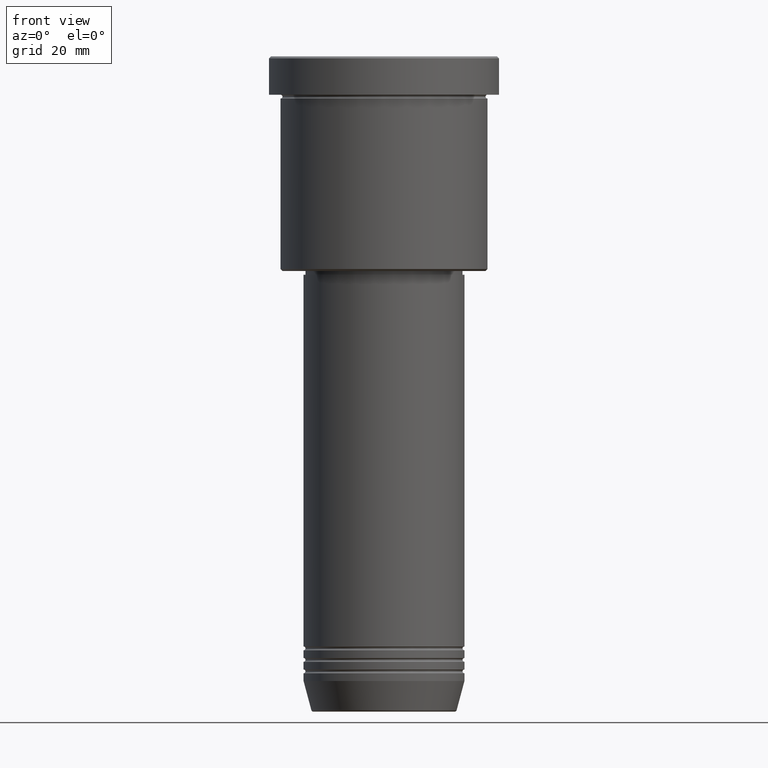
[diagram: clean part render]
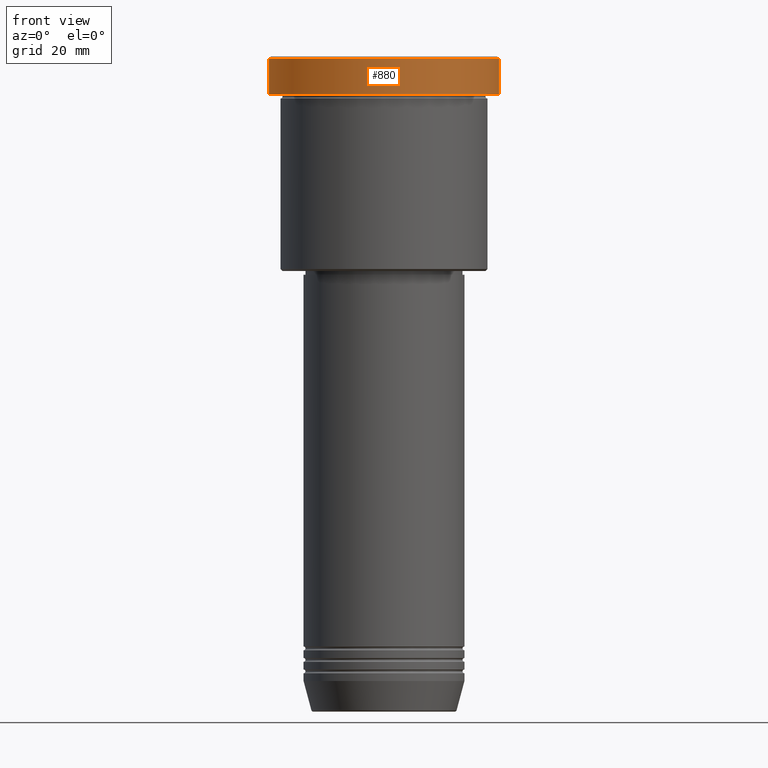
[diagram: same view with one face highlighted and labeled with its STEP entity id]
A machine part, front view. The second image highlights one B-rep face of the part: STEP entity #880.
In plain terms, the highlighted cylindrical surface (partial cylindrical patch) has radius 30 mm, axis along (-0, -0, 1).
Its self-contained STEP definition (entity closure, byte-faithful):
#39 = EDGE_CURVE ( 'NONE', #502, #555, #195, .T. ) ;
#43 = ORIENTED_EDGE ( 'NONE', *, *, #985, .T. ) ;
#45 = EDGE_CURVE ( 'NONE', #502, #436, #261, .T. ) ;
#78 = DIRECTION ( 'NONE',  ( 1.000000000000000000, 0.000000000000000000, 0.000000000000000000 ) ) ;
#122 = DIRECTION ( 'NONE',  ( -0.000000000000000000, -0.000000000000000000, 1.000000000000000000 ) ) ;
#195 = LINE ( 'NONE', #561, #1135 ) ;
#200 = DIRECTION ( 'NONE',  ( -0.000000000000000000, -0.000000000000000000, 1.000000000000000000 ) ) ;
#204 = CYLINDRICAL_SURFACE ( 'NONE', #320, 30.00000000000000000 ) ;
#257 = EDGE_LOOP ( 'NONE', ( #668, #258, #43, #942 ) ) ;
#258 = ORIENTED_EDGE ( 'NONE', *, *, #45, .T. ) ;
#261 = CIRCLE ( 'NONE', #408, 30.00000000000000000 ) ;
#320 = AXIS2_PLACEMENT_3D ( 'NONE', #1105, #826, #1027 ) ;
#360 = VERTEX_POINT ( 'NONE', #828 ) ;
#408 = AXIS2_PLACEMENT_3D ( 'NONE', #1019, #200, #78 ) ;
#426 = CIRCLE ( 'NONE', #489, 30.00000000000000000 ) ;
#436 = VERTEX_POINT ( 'NONE', #1088 ) ;
#454 = FACE_OUTER_BOUND ( 'NONE', #257, .T. ) ;
#489 = AXIS2_PLACEMENT_3D ( 'NONE', #652, #1106, #499 ) ;
#499 = DIRECTION ( 'NONE',  ( 1.000000000000000000, 0.000000000000000000, 0.000000000000000000 ) ) ;
#502 = VERTEX_POINT ( 'NONE', #1082 ) ;
#521 = EDGE_CURVE ( 'NONE', #360, #555, #426, .T. ) ;
#555 = VERTEX_POINT ( 'NONE', #670 ) ;
#561 = CARTESIAN_POINT ( 'NONE',  ( -30.00000000000000000, 3.673940397442059178E-15, 0.000000000000000000 ) ) ;
#652 = CARTESIAN_POINT ( 'NONE',  ( 0.000000000000000000, 0.000000000000000000, -0.5000000000000350830 ) ) ;
#653 = DIRECTION ( 'NONE',  ( -0.000000000000000000, -0.000000000000000000, 1.000000000000000000 ) ) ;
#668 = ORIENTED_EDGE ( 'NONE', *, *, #39, .F. ) ;
#670 = CARTESIAN_POINT ( 'NONE',  ( -30.00000000000000000, 3.673940397442059178E-15, -0.5000000000000350830 ) ) ;
#772 = CARTESIAN_POINT ( 'NONE',  ( 30.00000000000000000, 0.000000000000000000, 0.000000000000000000 ) ) ;
#826 = DIRECTION ( 'NONE',  ( -0.000000000000000000, -0.000000000000000000, 1.000000000000000000 ) ) ;
#828 = CARTESIAN_POINT ( 'NONE',  ( 30.00000000000000000, 0.000000000000000000, -0.5000000000000350830 ) ) ;
#880 = ADVANCED_FACE ( 'NONE', ( #454 ), #204, .T. ) ;
#942 = ORIENTED_EDGE ( 'NONE', *, *, #521, .T. ) ;
#957 = LINE ( 'NONE', #772, #1043 ) ;
#985 = EDGE_CURVE ( 'NONE', #436, #360, #957, .T. ) ;
#1019 = CARTESIAN_POINT ( 'NONE',  ( 0.000000000000000000, 0.000000000000000000, -9.999999999999992895 ) ) ;
#1027 = DIRECTION ( 'NONE',  ( 1.000000000000000000, 0.000000000000000000, 0.000000000000000000 ) ) ;
#1043 = VECTOR ( 'NONE', #122, 1000.000000000000000 ) ;
#1082 = CARTESIAN_POINT ( 'NONE',  ( -30.00000000000000000, 3.673940397442059178E-15, -9.999999999999992895 ) ) ;
#1088 = CARTESIAN_POINT ( 'NONE',  ( 30.00000000000000000, 0.000000000000000000, -9.999999999999992895 ) ) ;
#1105 = CARTESIAN_POINT ( 'NONE',  ( 0.000000000000000000, 0.000000000000000000, 0.000000000000000000 ) ) ;
#1106 = DIRECTION ( 'NONE',  ( 0.000000000000000000, 0.000000000000000000, -1.000000000000000000 ) ) ;
#1135 = VECTOR ( 'NONE', #653, 1000.000000000000000 ) ;